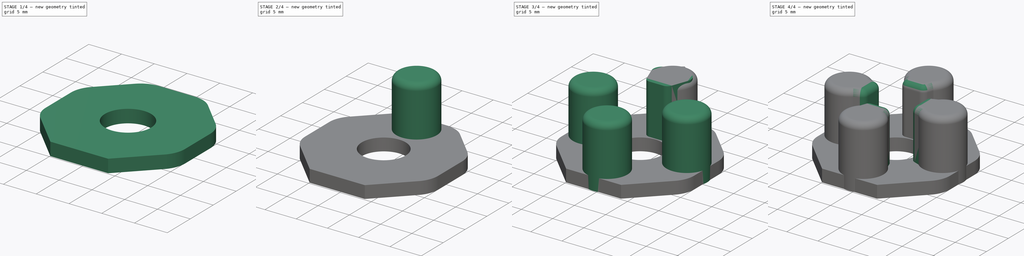
[diagram: build sequence overview — one tinted view per stage of 4, left to right]
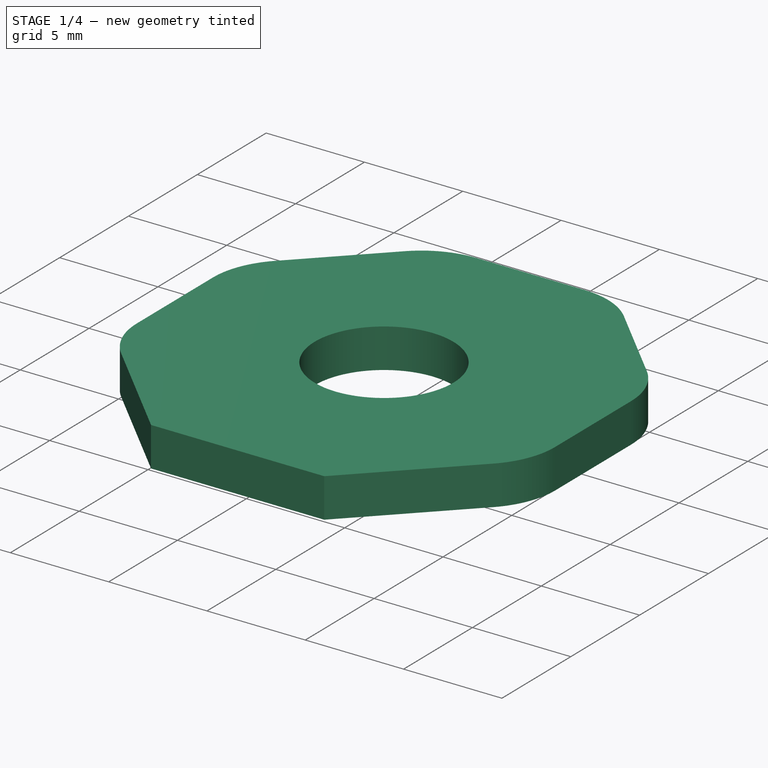
[diagram: stage 1 of 4 — iso view after this stage's code; geometry added in this stage tinted green]
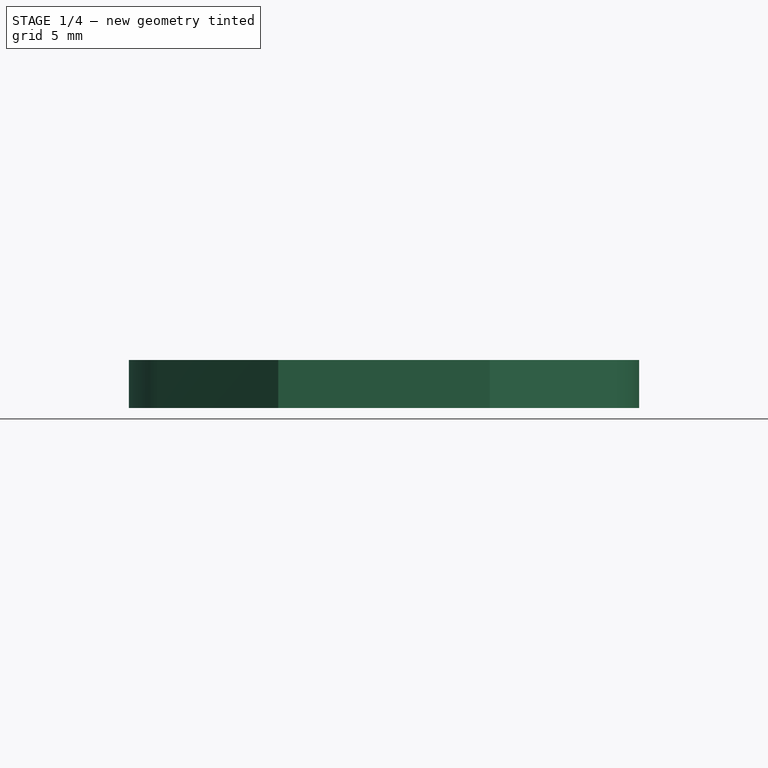
[diagram: stage 1 of 4 — front view after this stage's code; geometry added in this stage tinted green]
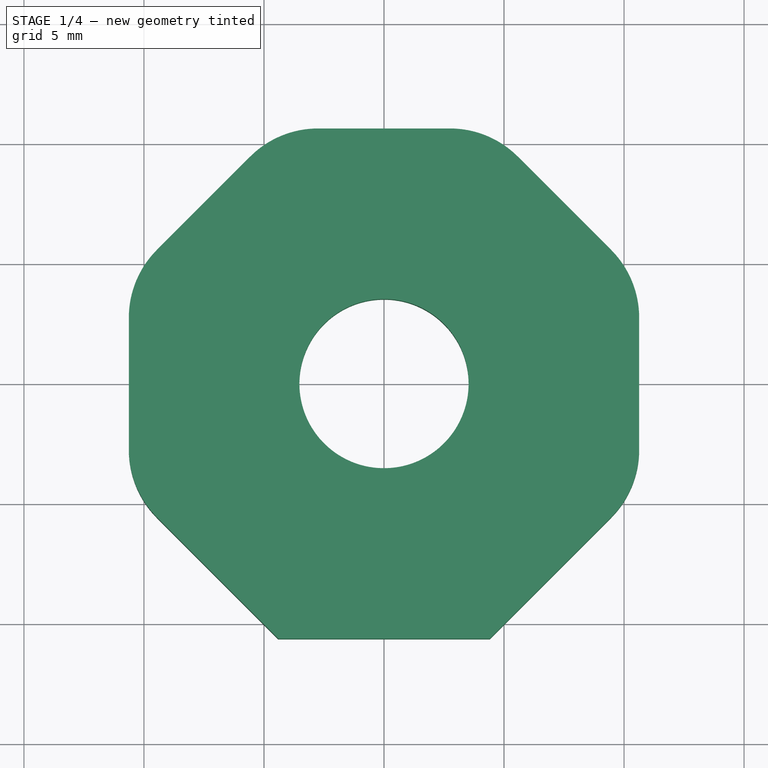
[diagram: stage 1 of 4 — top view after this stage's code; geometry added in this stage tinted green]
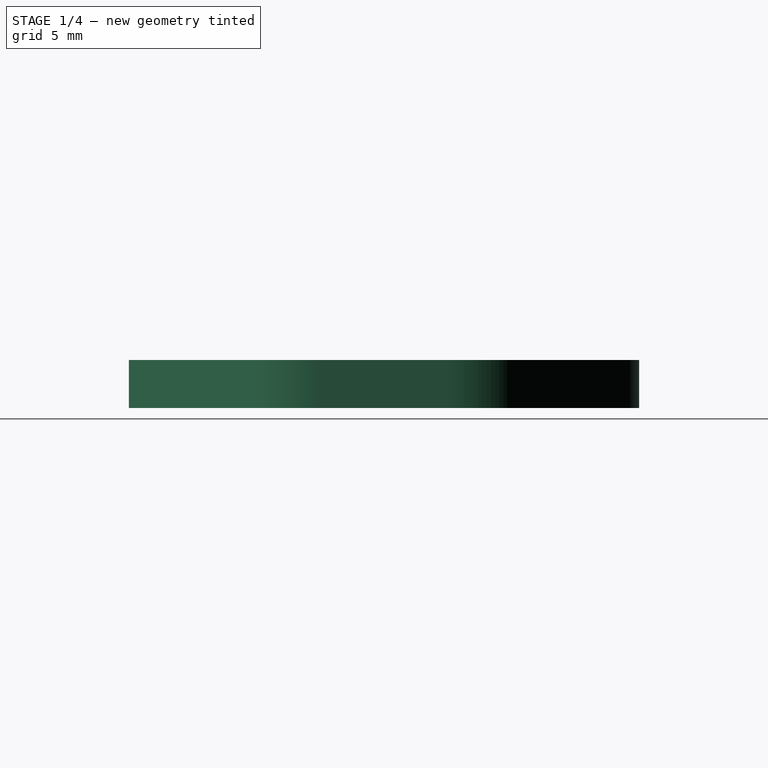
[diagram: stage 1 of 4 — right view after this stage's code; geometry added in this stage tinted green]
FCSTD DOCUMENT  (FreeCAD 0.21R33771 (Git))
Label: DPad
License: All rights reserved
LicenseURL: http://en.wikipedia.org/wiki/All_rights_reserved
objects: Sketcher::SketchObject×4, PartDesign::Pad×4, PartDesign::Fillet×3, PartDesign::PolarPattern×2, PartDesign::Body×2, Image::ImagePlane×1, App::Part×1
note: 22 computed .brp shape members not serialized (recipe doc carries the construction recipe); baked Part::Feature solids carry a one-line shape summary decoded from their .brp

FEATURE [PartDesign::Body] Body  label="DPad"
  Group = -> [Sketch,Pad,Sketch001,Pad001,Fillet,PolarPattern]
  Origin = -> Origin001
  Tip = -> PolarPattern
FEATURE [Sketcher::SketchObject] Sketch003
  FullyConstrained = false
  MapMode = 5
  Support = -> [XY_Plane002]
  sketch-geometry (10):
    g0: LineSegment StartX=10.6302 StartY=-4.40315 StartZ=0 EndX=10.6302 EndY=4.40315 EndZ=0
    g1: LineSegment StartX=10.6302 StartY=4.40315 StartZ=0 EndX=4.40315 EndY=10.6302 EndZ=0
    g2: LineSegment StartX=4.40315 StartY=10.6302 StartZ=0 EndX=-4.40315 EndY=10.6302 EndZ=0
    g3: LineSegment StartX=-4.40315 StartY=10.6302 StartZ=0 EndX=-10.6302 EndY=4.40315 EndZ=0
    g4: LineSegment StartX=-10.6302 StartY=4.40315 StartZ=0 EndX=-10.6302 EndY=-4.40315 EndZ=0
    g5: LineSegment StartX=-10.6302 StartY=-4.40315 StartZ=0 EndX=-4.40315 EndY=-10.6302 EndZ=0
    g6: LineSegment StartX=-4.40315 StartY=-10.6302 StartZ=0 EndX=4.40315 EndY=-10.6302 EndZ=0
    g7: LineSegment StartX=4.40315 StartY=-10.6302 StartZ=0 EndX=10.6302 EndY=-4.40315 EndZ=0
    g8: Circle CenterX=0 CenterY=0 CenterZ=0 NormalX=0 NormalY=0 NormalZ=1 AngleXU=0 Radius=11.506
    g9: Circle CenterX=0 CenterY=0 CenterZ=0 NormalX=0 NormalY=0 NormalZ=1 AngleXU=0 Radius=3.52502
  constraints (20):
    c: Coincident(g0,g1)
    c: Coincident(g1,g2)
    c: Coincident(g2,g3)
    c: Coincident(g3,g4)
    c: Coincident(g4,g5)
    c: Coincident(g5,g6)
    c: Coincident(g6,g7)
    c: Coincident(g7,g0)
    c: Equal(g0, g1-g7) x7
    c: PointOnObject(g0,g8)
    c: PointOnObject(g1,g8)
    c: PointOnObject(g2,g8)
    c: PointOnObject(g3,g8)
    c: PointOnObject(g4,g8)
    c: PointOnObject(g5,g8)
    c: PointOnObject(g6,g8)
    c: PointOnObject(g7,g8)
    c: Coincident(g8,g-1)
    c: Coincident(g9,g8)
    c: Horizontal(g2)
FEATURE [PartDesign::Pad] Pad002
  Direction = (0,0,1)
  Length = 2
  Length2 = 10
  Profile = -> Sketch003
  ReferenceAxis = -> Sketch003 [N_Axis]
  Type = 0
FEATURE [PartDesign::Fillet] Fillet001
  Base = -> Pad002 [Edge11,Edge14,Edge1,Edge2,Edge5,Edge8]
  BaseFeature = -> Pad002
  Radius = 4
  SupportTransform = false
  UseAllEdges = false
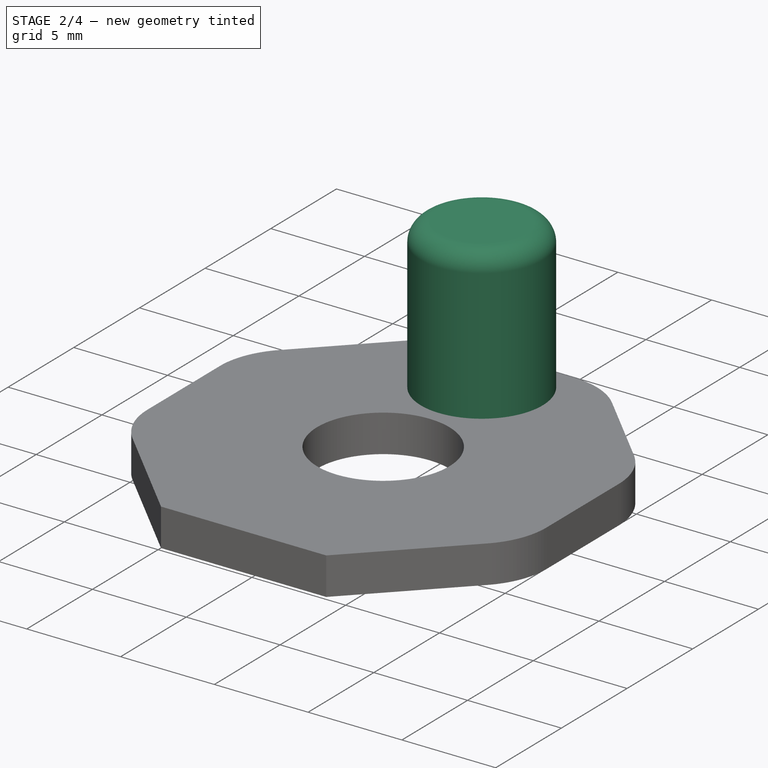
[diagram: stage 2 of 4 — iso view after this stage's code; geometry added in this stage tinted green]
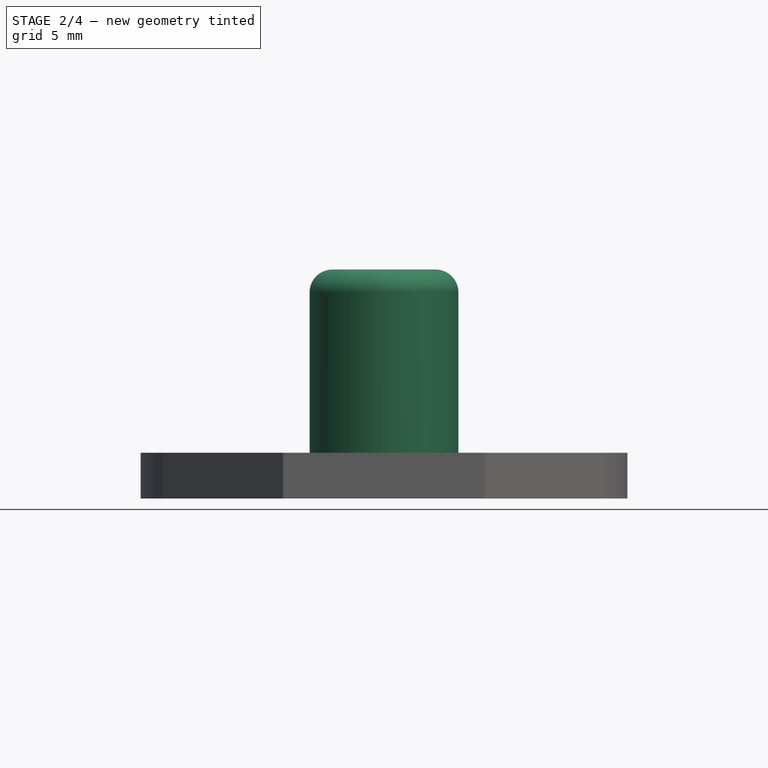
[diagram: stage 2 of 4 — front view after this stage's code; geometry added in this stage tinted green]
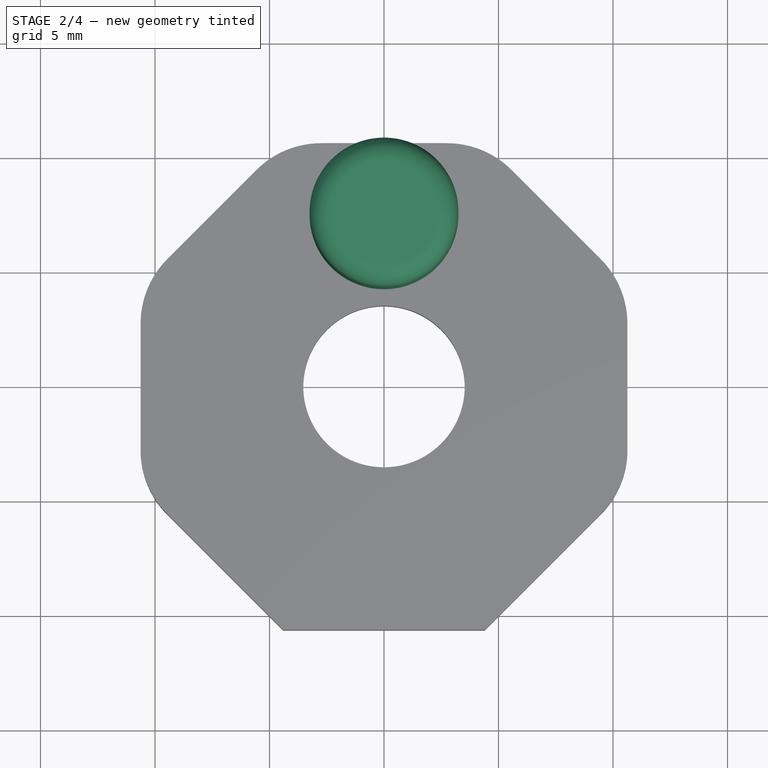
[diagram: stage 2 of 4 — top view after this stage's code; geometry added in this stage tinted green]
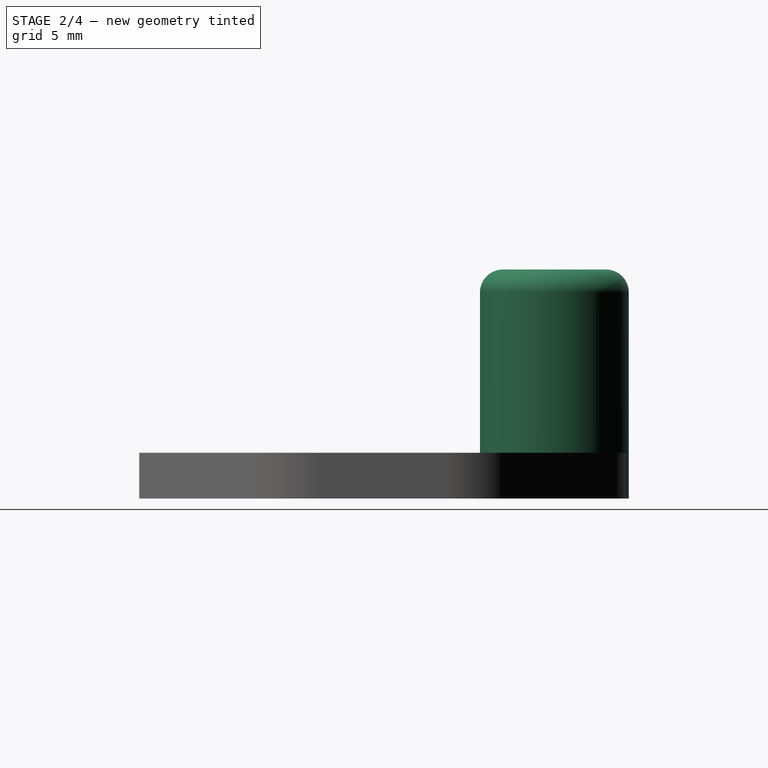
[diagram: stage 2 of 4 — right view after this stage's code; geometry added in this stage tinted green]
FEATURE [Sketcher::SketchObject] Sketch004
  FullyConstrained = true
  MapMode = 5
  Support = -> [XY_Plane002]
  sketch-geometry (1):
    g0: Circle CenterX=0 CenterY=7.5 CenterZ=0 NormalX=0 NormalY=0 NormalZ=1 AngleXU=0 Radius=3.25
  constraints (3):
    c: PointOnObject(g0,g-2)
    c: DistanceY(g-1,g0) = 7.5
    c: Diameter(g0) = 6.5
FEATURE [PartDesign::Pad] Pad003
  BaseFeature = -> Fillet001
  Direction = (0,0,1)
  Length = 10
  Length2 = 10
  Profile = -> Sketch004
  ReferenceAxis = -> Sketch004 [N_Axis]
  Type = 0
FEATURE [PartDesign::Fillet] Fillet002
  Base = -> Pad003 [Edge57]
  BaseFeature = -> Pad003
  Radius = 1
  SupportTransform = false
  UseAllEdges = false
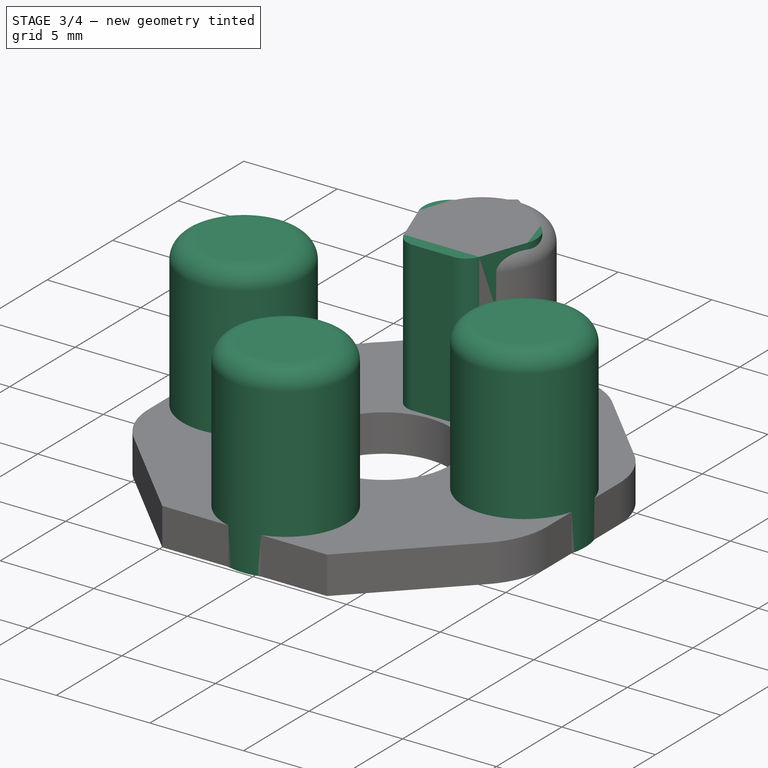
[diagram: stage 3 of 4 — iso view after this stage's code; geometry added in this stage tinted green]
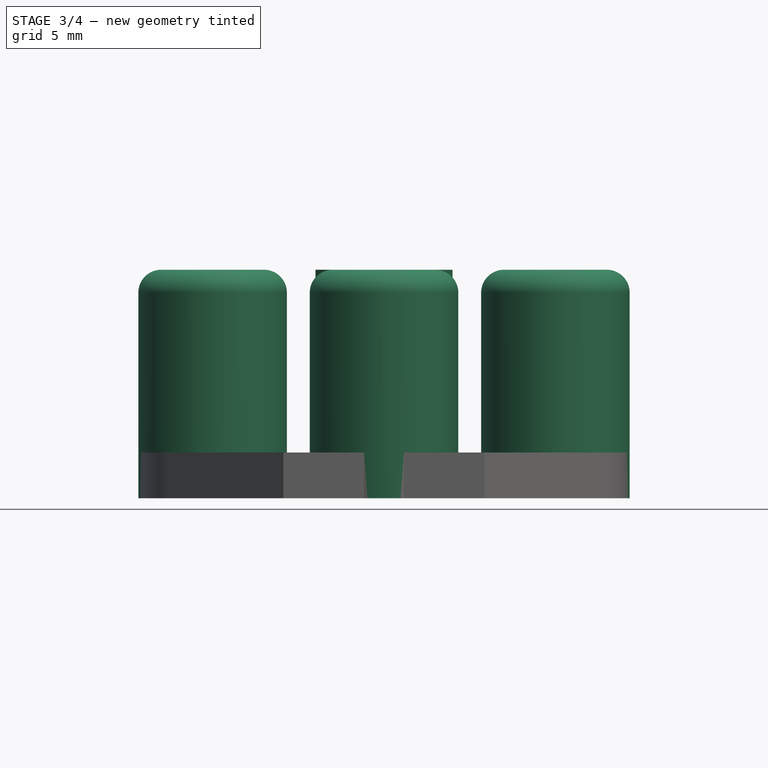
[diagram: stage 3 of 4 — front view after this stage's code; geometry added in this stage tinted green]
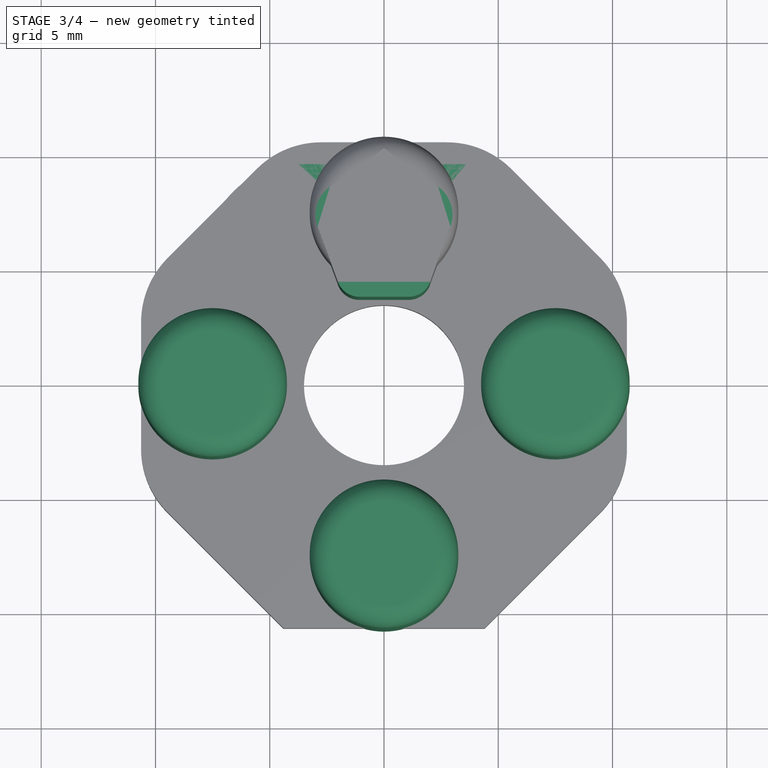
[diagram: stage 3 of 4 — top view after this stage's code; geometry added in this stage tinted green]
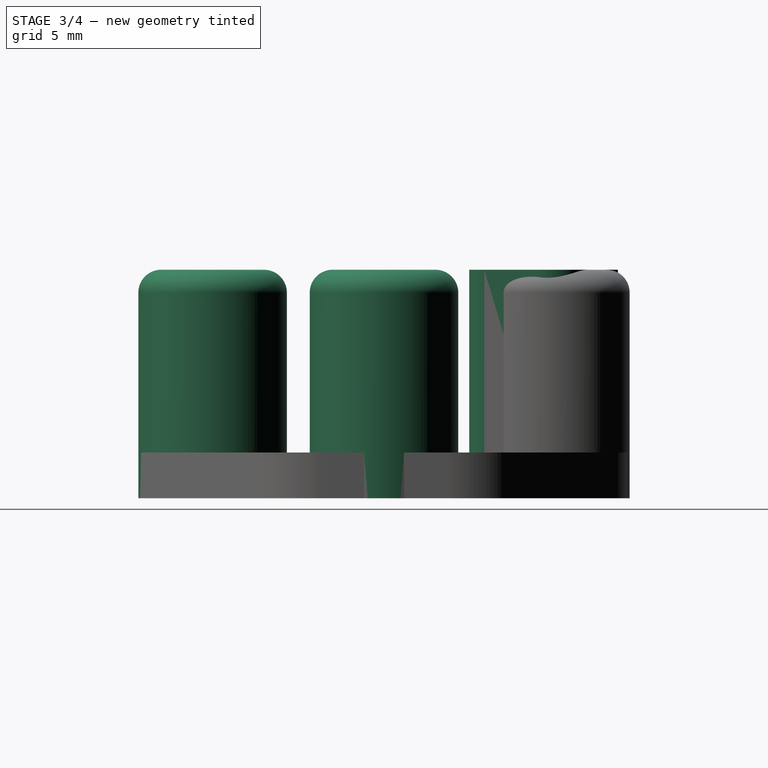
[diagram: stage 3 of 4 — right view after this stage's code; geometry added in this stage tinted green]
FEATURE [Image::ImagePlane] MilkTastic_dpad  label="MilkTastic-dpad"
  XSize = 26.1905
  YSize = 26.1905
FEATURE [Sketcher::SketchObject] Sketch
  FullyConstrained = false
  MapMode = 5
  Support = -> [XY_Plane001]
  sketch-geometry (26):
    g0: LineSegment StartX=3.6032 StartY=9.67463 StartZ=0 EndX=-3.73964 EndY=9.67463 EndZ=0
    g1: LineSegment StartX=-6.70077 StartY=8.36382 StartZ=0 EndX=-9.12197 EndY=5.69778 EndZ=0
    g2: LineSegment StartX=-10.1608 StartY=3.01317 StartZ=0 EndX=-10.1676 EndY=-2.88384 EndZ=0
    g3: LineSegment StartX=-9.00912 StartY=-5.7037 StartZ=0 EndX=-5.79258 EndY=-8.95021 EndZ=0
    g4: LineSegment StartX=-2.97005 StartY=-10.1349 StartZ=0 EndX=2.8803 EndY=-10.1626 EndZ=0
    g5: LineSegment StartX=5.70597 StartY=-9.01268 StartZ=0 EndX=9.01033 EndY=-5.75853 EndZ=0
    g6: LineSegment StartX=10.1958 StartY=-3.15924 StartZ=0 EndX=10.509 EndY=1.82817 EndZ=0
    g7: LineSegment StartX=9.62464 StartY=4.59714 StartZ=0 EndX=6.711 EndY=8.19288 EndZ=0
    g8: Circle CenterX=0 CenterY=0 CenterZ=0 NormalX=0 NormalY=0 NormalZ=1 AngleXU=0 Radius=11.1338
    g9: ArcOfCircle CenterX=3.6032 CenterY=5.67463 CenterZ=0 NormalX=0 NormalY=0 NormalZ=1 AngleXU=0 Radius=4 StartAngle=0.680992 EndAngle=1.5708
    g10: GeomPoint X=5.51033 Y=9.67463 Z=0
    g11: ArcOfCircle CenterX=6.51685 CenterY=2.07888 CenterZ=0 NormalX=0 NormalY=0 NormalZ=1 AngleXU=0 Radius=4 StartAngle=6.22047 EndAngle=6.96418
    g12: GeomPoint X=10.6068 Y=3.3851 Z=0
    g13: ArcOfCircle CenterX=6.20364 CenterY=-2.90853 CenterZ=0 NormalX=0 NormalY=0 NormalZ=1 AngleXU=0 Radius=4 StartAngle=5.49013 EndAngle=6.22047
    g14: GeomPoint X=10.0999 Y=-4.68549 Z=0
    g15: ArcOfCircle CenterX=2.89928 CenterY=-6.16268 CenterZ=0 NormalX=0 NormalY=0 NormalZ=1 AngleXU=0 Radius=4 StartAngle=4.70764 EndAngle=5.49013
    g16: GeomPoint X=4.53032 Y=-10.1705 Z=0
    g17: ArcOfCircle CenterX=-2.95107 CenterY=-6.13493 CenterZ=0 NormalX=0 NormalY=0 NormalZ=1 AngleXU=0 Radius=4 StartAngle=3.92235 EndAngle=4.70764
    g18: GeomPoint X=-4.62663 Y=-10.127 Z=0
    g19: ArcOfCircle CenterX=-6.1676 CenterY=-2.88842 CenterZ=0 NormalX=0 NormalY=0 NormalZ=1 AngleXU=0 Radius=4 StartAngle=3.14045 EndAngle=3.92235
    g20: GeomPoint X=-10.1695 Y=-4.53251 Z=0
    g21: ArcOfCircle CenterX=-6.16085 CenterY=3.00859 CenterZ=0 NormalX=0 NormalY=0 NormalZ=1 AngleXU=0 Radius=4 StartAngle=2.40428 EndAngle=3.14045
    g22: GeomPoint X=-10.1591 Y=4.5558 Z=0
    g23: ArcOfCircle CenterX=-3.73964 CenterY=5.67463 CenterZ=0 NormalX=0 NormalY=0 NormalZ=1 AngleXU=0 Radius=4 StartAngle=1.5708 EndAngle=2.40428
    g24: GeomPoint X=-5.51033 Y=9.67463 Z=0
    g25: Circle CenterX=0 CenterY=0 CenterZ=0 NormalX=0 NormalY=0 NormalZ=1 AngleXU=0 Radius=3.5
  constraints (52):
    c: PointOnObject(g24,g8)
    c: PointOnObject(g22,g8)
    c: PointOnObject(g20,g8)
    c: PointOnObject(g18,g8)
    c: PointOnObject(g16,g8)
    c: PointOnObject(g14,g8)
    c: PointOnObject(g12,g8)
    c: PointOnObject(g10,g8)
    c: Coincident(g8,g-1)
    c: Parallel(g0,g-1)
    c: PointOnObject(g10,g0)
    c: PointOnObject(g10,g7)
    c: Tangent(g0,g9) = -1.5708
    c: Tangent(g7,g9) = -1.5708
    c: PointOnObject(g12,g6)
    c: PointOnObject(g12,g7)
    c: Tangent(g6,g11) = -1.5708
    c: Tangent(g7,g11) = -1.5708
    c: PointOnObject(g14,g5)
    c: PointOnObject(g14,g6)
    c: Tangent(g5,g13) = -1.5708
    c: Tangent(g6,g13) = -1.5708
    c: PointOnObject(g16,g4)
    c: PointOnObject(g16,g5)
    c: Tangent(g4,g15) = -1.5708
    c: Tangent(g5,g15) = -1.5708
    c: PointOnObject(g18,g3)
    c: PointOnObject(g18,g4)
    c: Tangent(g3,g17) = -1.5708
    c: Tangent(g4,g17) = -1.5708
    c: PointOnObject(g20,g2)
    c: PointOnObject(g20,g3)
    c: Tangent(g2,g19) = -1.5708
    c: Tangent(g3,g19) = -1.5708
    c: PointOnObject(g22,g1)
    c: PointOnObject(g22,g2)
    c: Tangent(g1,g21) = -1.5708
    c: Tangent(g2,g21) = -1.5708
    c: PointOnObject(g24,g0)
    c: PointOnObject(g24,g1)
    c: Tangent(g0,g23) = -1.5708
    c: Tangent(g1,g23) = -1.5708
    c: Radius(g23) = 4
    c: Radius(g9) = 4
    c: Radius(g11) = 4
    c: Radius(g13) = 4
    c: Radius(g15) = 4
    c: Radius(g17) = 4
    c: Radius(g19) = 4
    c: Radius(g21) = 4
    c: Coincident(g25,g8)
    c: Diameter(g25) = 7
FEATURE [PartDesign::Pad] Pad
  Direction = (0,0,1)
  Length = 2
  Length2 = 10
  Profile = -> Sketch
  ReferenceAxis = -> Sketch [N_Axis]
  Type = 0
FEATURE [Sketcher::SketchObject] Sketch001
  FullyConstrained = false
  MapMode = 5
  Support = -> [XY_Plane001]
  sketch-geometry (16):
    g0: GeomPoint X=0 Y=3.33456 Z=0
    g1: GeomPoint X=-4.72203 Y=8.76381 Z=0
    g2: LineSegment StartX=-2.90636 StartY=6.80192 StartZ=0 EndX=-2.01534 EndY=4.3857 EndZ=0
    g3: LineSegment StartX=-1.07711 StartY=3.7317 StartZ=0 EndX=1.07711 EndY=3.7317 EndZ=0
    g4: LineSegment StartX=2.01534 StartY=4.3857 StartZ=0 EndX=2.90636 EndY=6.80192 EndZ=0
    g5: LineSegment StartX=2.37019 StartY=8.54198 StartZ=0 EndX=0 EndY=10.233 EndZ=0
    g6: LineSegment StartX=0 StartY=10.233 StartZ=0 EndX=-2.37019 EndY=8.54198 EndZ=0
    g7: Circle CenterX=0 CenterY=6.74027 CenterZ=0 NormalX=0 NormalY=0 NormalZ=1 AngleXU=0 Radius=3.49274
    g8: ArcOfCircle CenterX=-1.499 CenterY=7.3209 CenterZ=0 NormalX=0 NormalY=0 NormalZ=1 AngleXU=0 Radius=1.5 StartAngle=2.1905 EndAngle=3.49489
    g9: GeomPoint X=-3.3027 Y=7.87668 Z=0
    g10: ArcOfCircle CenterX=-1.07711 CenterY=4.7317 CenterZ=0 NormalX=0 NormalY=0 NormalZ=1 AngleXU=0 Radius=1 StartAngle=3.49489 EndAngle=4.71239
    g11: GeomPoint X=-1.77417 Y=3.7317 Z=0
    g12: ArcOfCircle CenterX=1.07711 CenterY=4.7317 CenterZ=0 NormalX=0 NormalY=0 NormalZ=1 AngleXU=0 Radius=1 StartAngle=4.71239 EndAngle=5.92989
    g13: GeomPoint X=1.77417 Y=3.7317 Z=0
    g14: ArcOfCircle CenterX=1.499 CenterY=7.3209 CenterZ=0 NormalX=0 NormalY=0 NormalZ=1 AngleXU=0 Radius=1.5 StartAngle=5.92989 EndAngle=7.23428
    g15: GeomPoint X=3.3027 Y=7.87668 Z=0
  constraints (30):
    c: PointOnObject(g0,g-2)
    c: Coincident(g5,g6)
    c: PointOnObject(g11,g7)
    c: PointOnObject(g13,g7)
    c: PointOnObject(g15,g7)
    c: PointOnObject(g5,g7)
    c: PointOnObject(g9,g7)
    c: PointOnObject(g7,g-2)
    c: PointOnObject(g5,g-2)
    c: PointOnObject(g9,g2)
    c: PointOnObject(g9,g6)
    c: Tangent(g2,g8) = -1.5708
    c: Tangent(g6,g8) = -1.5708
    c: PointOnObject(g11,g2)
    c: PointOnObject(g11,g3)
    c: Tangent(g2,g10) = -1.5708
    c: Tangent(g3,g10) = -1.5708
    c: PointOnObject(g13,g3)
    c: PointOnObject(g13,g4)
    c: Tangent(g3,g12) = -1.5708
    c: Tangent(g4,g12) = -1.5708
    c: PointOnObject(g15,g4)
    c: PointOnObject(g15,g5)
    c: Tangent(g4,g14) = -1.5708
    c: Tangent(g5,g14) = -1.5708
    c: Diameter(g8) = 3
    c: Diameter(g14) = 3
    c: Diameter(g12) = 2
    c: Diameter(g10) = 2
    c: Symmetric(g3,g3,g-2)
FEATURE [PartDesign::Pad] Pad001
  BaseFeature = -> Pad
  Direction = (0,0,1)
  Length = 10
  Length2 = 10
  Profile = -> Sketch001
  ReferenceAxis = -> Sketch001 [N_Axis]
  Type = 0
FEATURE [PartDesign::PolarPattern] PolarPattern002
  Angle = 360
  Axis = -> Z_Axis002
  BaseFeature = -> Fillet002
  Occurrences = 4
  Originals = -> [Pad003,Fillet002]
FEATURE [PartDesign::Body] Body001  label="ABXY"
  Group = -> [Sketch003,Pad002,Fillet001,Sketch004,Pad003,Fillet002,PolarPattern002]
  Origin = -> Origin002
  Tip = -> PolarPattern002
FEATURE [App::Part] Part
  Group = -> [Body,Body001]
  Origin = -> Origin
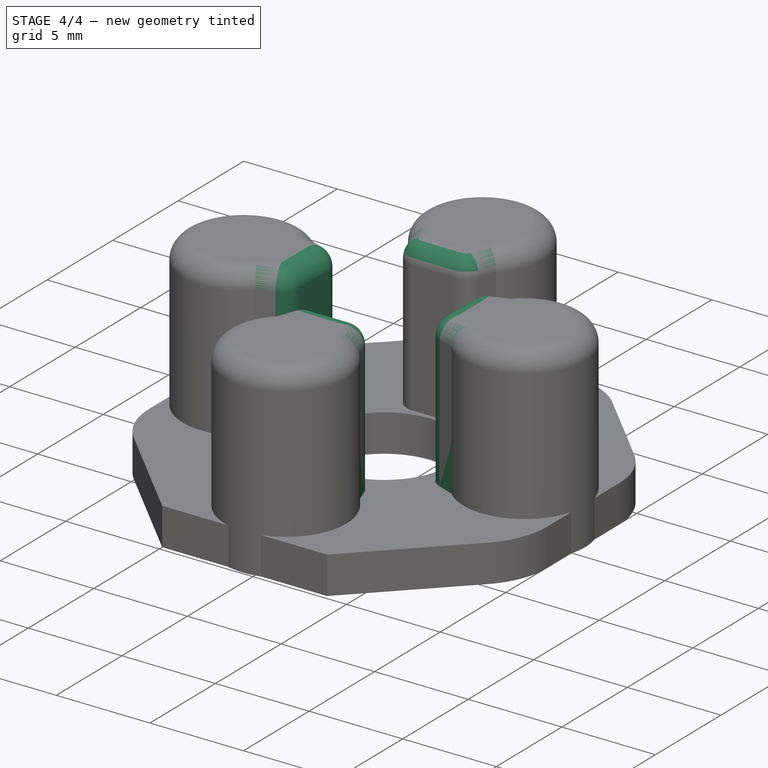
[diagram: stage 4 of 4 — iso view after this stage's code; geometry added in this stage tinted green]
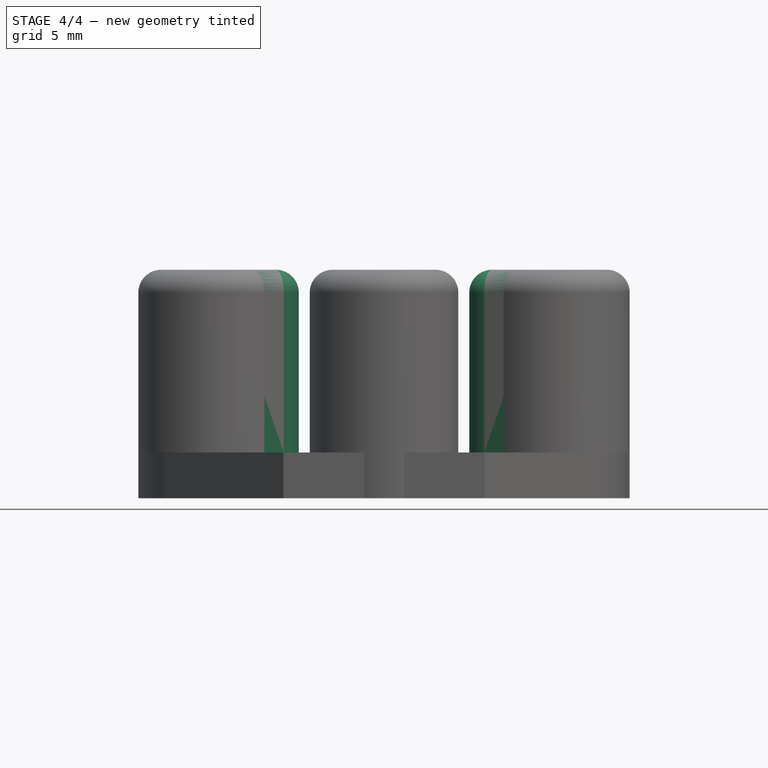
[diagram: stage 4 of 4 — front view after this stage's code; geometry added in this stage tinted green]
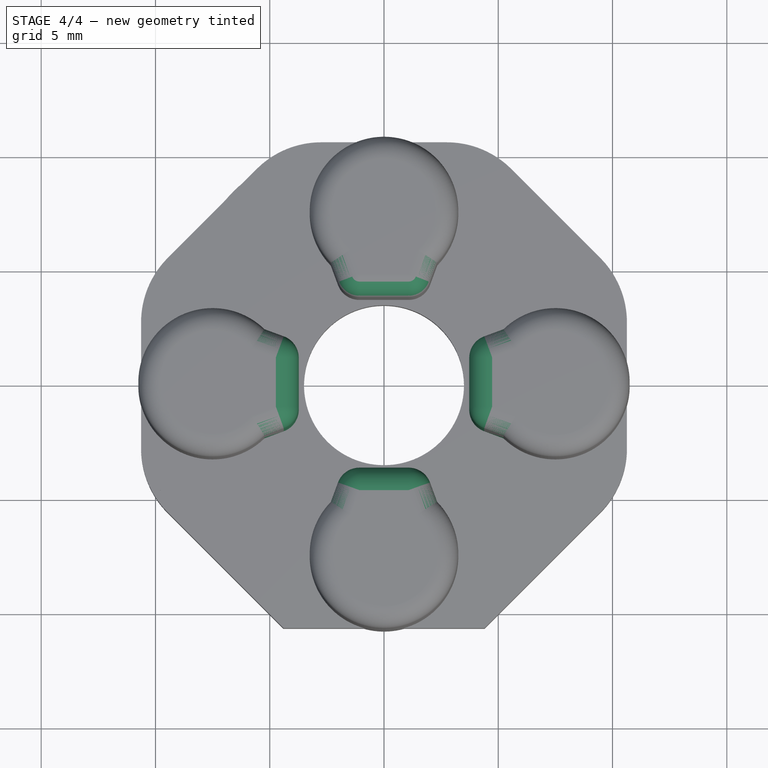
[diagram: stage 4 of 4 — top view after this stage's code; geometry added in this stage tinted green]
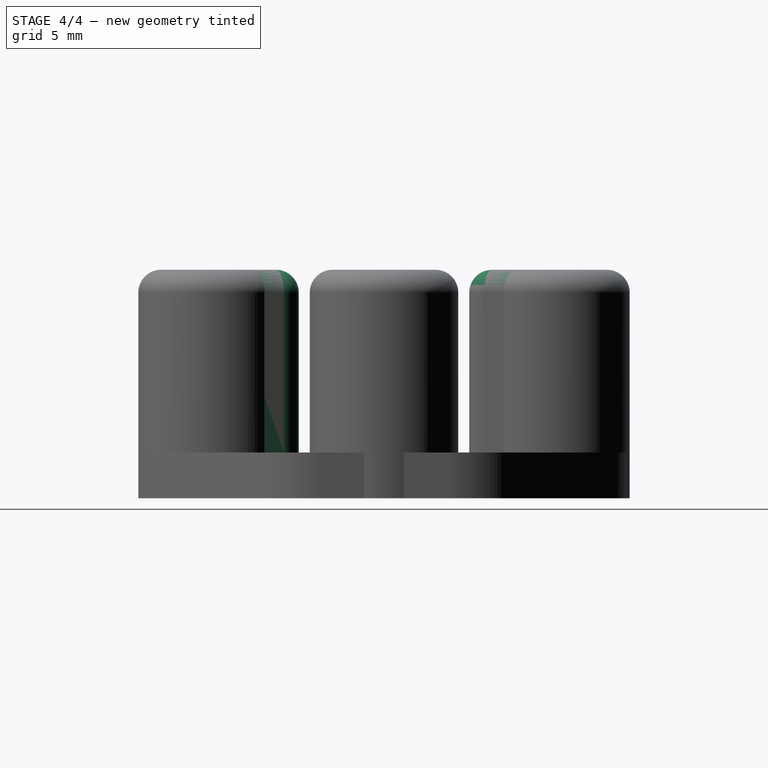
[diagram: stage 4 of 4 — right view after this stage's code; geometry added in this stage tinted green]
FEATURE [PartDesign::Fillet] Fillet
  Base = -> Pad001 [Edge81,Edge88,Edge82,Edge83,Edge84,Edge85,Edge86,Edge87,Edge34]
  BaseFeature = -> Pad001
  Radius = 1
  SupportTransform = false
  UseAllEdges = false
FEATURE [PartDesign::PolarPattern] PolarPattern
  Angle = 360
  Axis = -> Z_Axis001
  BaseFeature = -> Fillet
  Occurrences = 4
  Originals = -> [Pad001,Fillet]
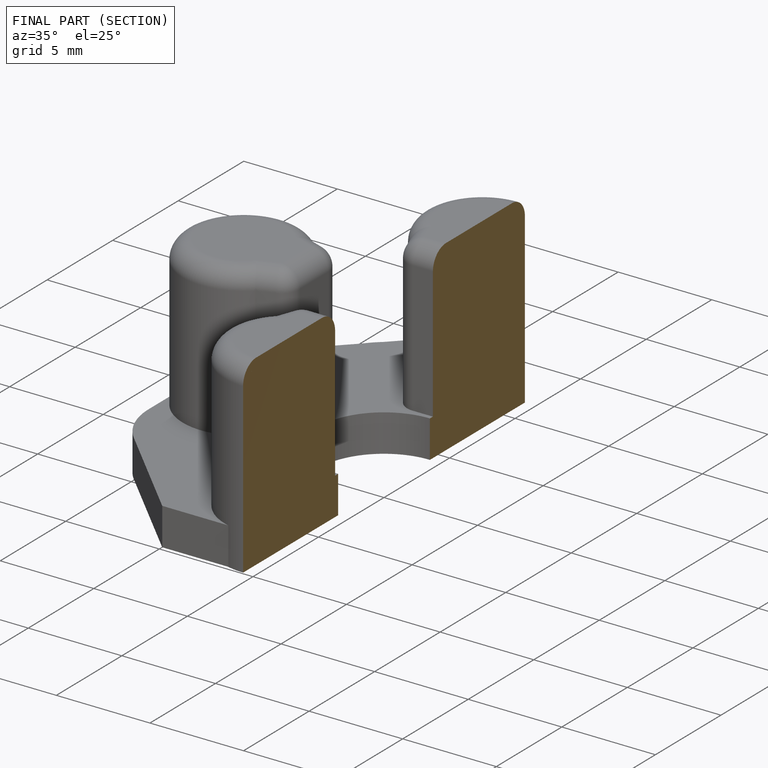
[diagram: finished part — half-section view (interior)]
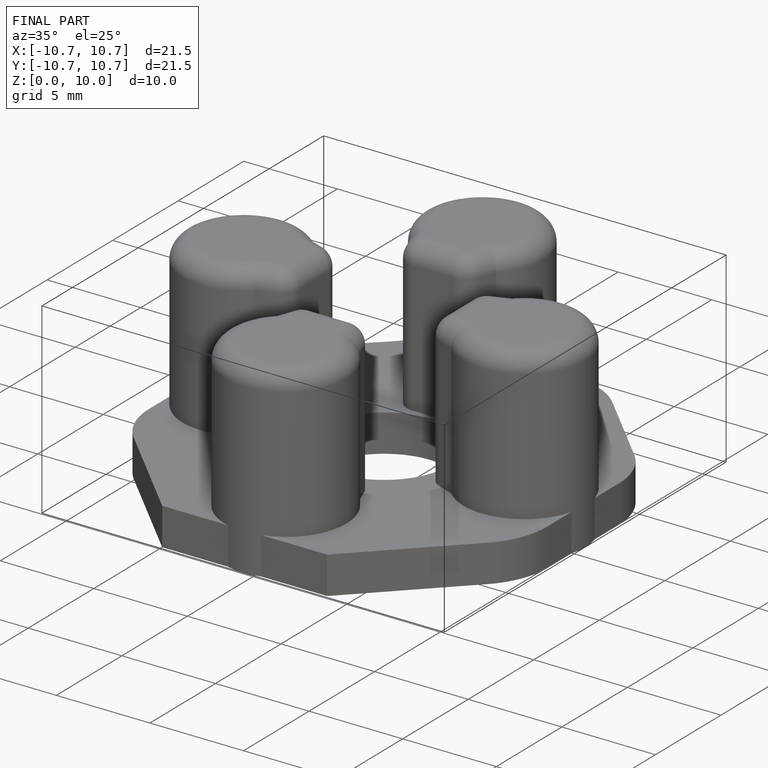
[diagram: finished part — iso view with bounding-box wireframe]
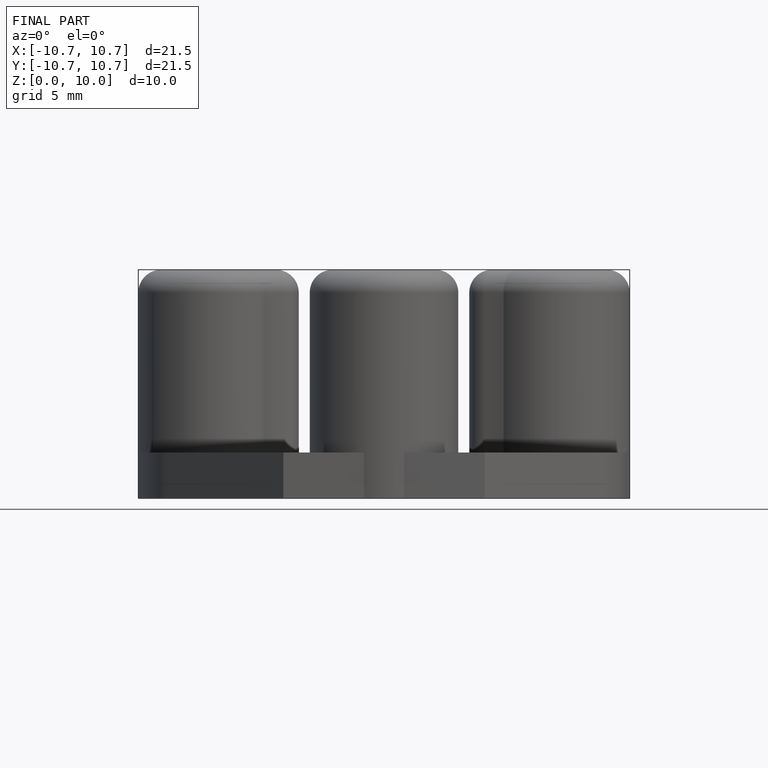
[diagram: finished part — front view with bounding-box wireframe]
